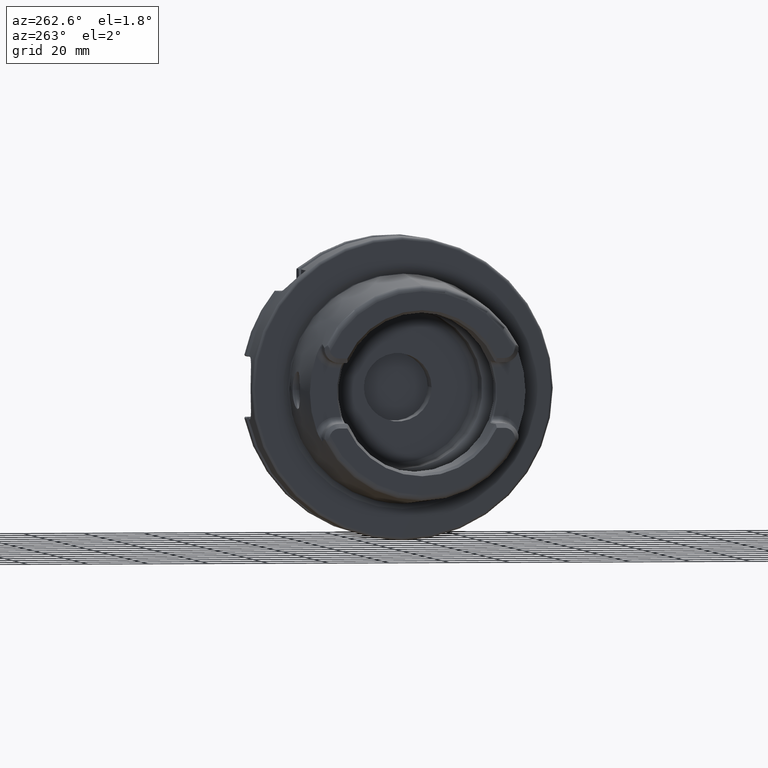
[diagram: clean part render]
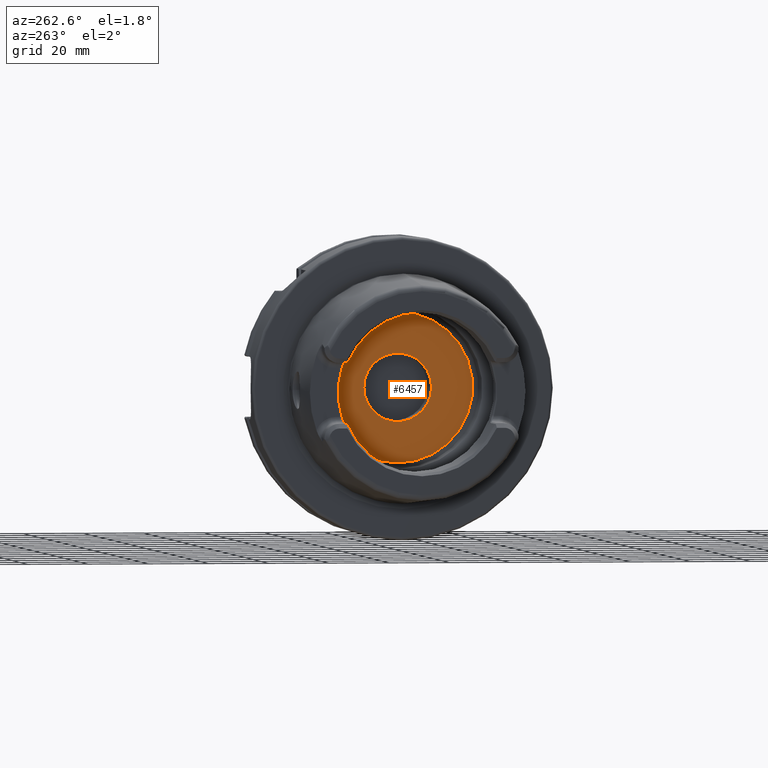
[diagram: same view with one face highlighted and labeled with its STEP entity id]
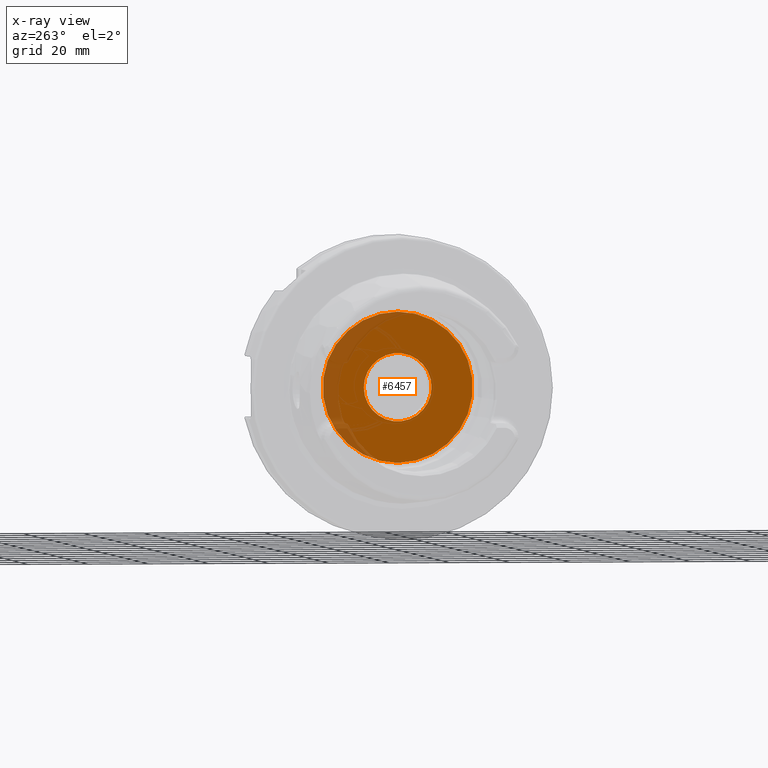
[diagram: x-ray of the same camera — body ghosted, the highlighted face saturated]
A machine part, auxiliary view. The second image highlights one B-rep face of the part: STEP entity #6457.
The next image is the same camera in x-ray: the body ghosted, the highlighted face saturated — about 18% of this face is hidden behind the body in this view.
In plain terms, the highlighted planar face has unit normal (1, 0, 0).
Its self-contained STEP definition (entity closure, byte-faithful):
#2708=CARTESIAN_POINT('',(1.25E1,0.E0,0.E0));
#2709=DIRECTION('',(-1.E0,0.E0,0.E0));
#2710=DIRECTION('',(0.E0,1.E0,0.E0));
#2711=AXIS2_PLACEMENT_3D('',#2708,#2709,#2710);
#2713=CARTESIAN_POINT('',(1.25E1,0.E0,0.E0));
#2714=DIRECTION('',(-1.E0,0.E0,0.E0));
#2715=DIRECTION('',(0.E0,-1.E0,0.E0));
#2716=AXIS2_PLACEMENT_3D('',#2713,#2714,#2715);
#2723=CARTESIAN_POINT('',(1.25E1,0.E0,0.E0));
#2724=DIRECTION('',(-1.E0,0.E0,0.E0));
#2725=DIRECTION('',(0.E0,0.E0,-1.E0));
#2726=AXIS2_PLACEMENT_3D('',#2723,#2724,#2725);
#2733=CARTESIAN_POINT('',(1.25E1,0.E0,0.E0));
#2734=DIRECTION('',(1.E0,0.E0,0.E0));
#2735=DIRECTION('',(0.E0,0.E0,-1.E0));
#2736=AXIS2_PLACEMENT_3D('',#2733,#2734,#2735);
#2804=CARTESIAN_POINT('',(1.25E1,0.E0,-2.49E1));
#2805=CARTESIAN_POINT('',(1.25E1,0.E0,2.49E1));
#2806=VERTEX_POINT('',#2804);
#2807=VERTEX_POINT('',#2805);
#2812=CARTESIAN_POINT('',(1.25E1,1.125E1,0.E0));
#2813=CARTESIAN_POINT('',(1.25E1,-1.125E1,0.E0));
#2814=VERTEX_POINT('',#2812);
#2815=VERTEX_POINT('',#2813);
#6442=CARTESIAN_POINT('',(1.25E1,0.E0,0.E0));
#6443=DIRECTION('',(1.E0,0.E0,0.E0));
#6444=DIRECTION('',(0.E0,0.E0,1.E0));
#6445=AXIS2_PLACEMENT_3D('',#6442,#6443,#6444);
#6446=PLANE('',#6445);
#6448=ORIENTED_EDGE('',*,*,#6447,.F.);
#6450=ORIENTED_EDGE('',*,*,#6449,.T.);
#6451=EDGE_LOOP('',(#6448,#6450));
#6452=FACE_OUTER_BOUND('',#6451,.F.);
#6453=ORIENTED_EDGE('',*,*,#6422,.T.);
#6454=ORIENTED_EDGE('',*,*,#6436,.T.);
#6455=EDGE_LOOP('',(#6453,#6454));
#6456=FACE_BOUND('',#6455,.F.);
#6457=ADVANCED_FACE('',(#6452,#6456),#6446,.F.);
#2712=CIRCLE('',#2711,1.125E1);
#2717=CIRCLE('',#2716,1.125E1);
#2727=CIRCLE('',#2726,2.49E1);
#2737=CIRCLE('',#2736,2.49E1);
#6422=EDGE_CURVE('',#2814,#2815,#2712,.T.);
#6436=EDGE_CURVE('',#2815,#2814,#2717,.T.);
#6447=EDGE_CURVE('',#2806,#2807,#2727,.T.);
#6449=EDGE_CURVE('',#2806,#2807,#2737,.T.);